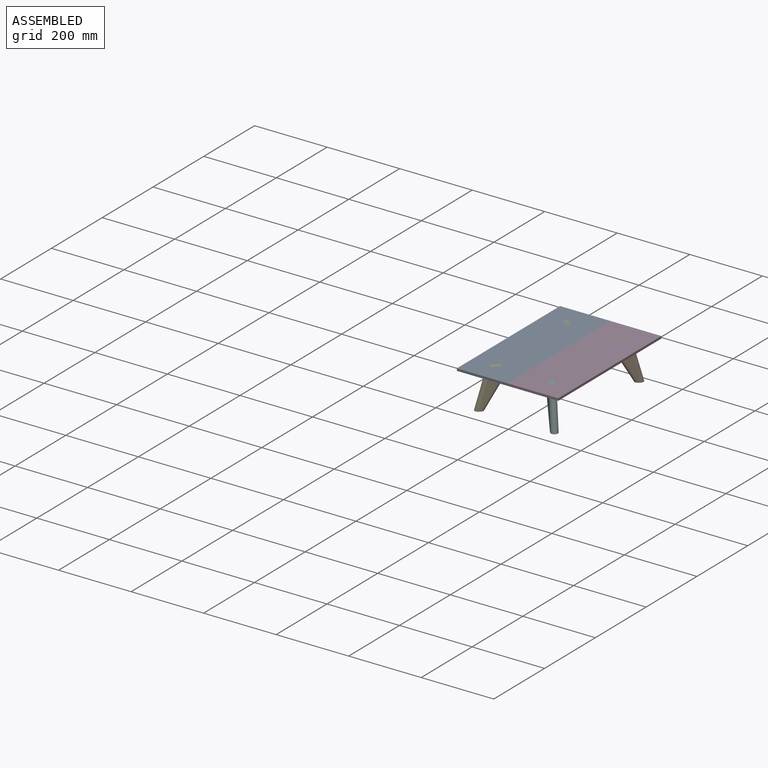
[diagram: assembled view]
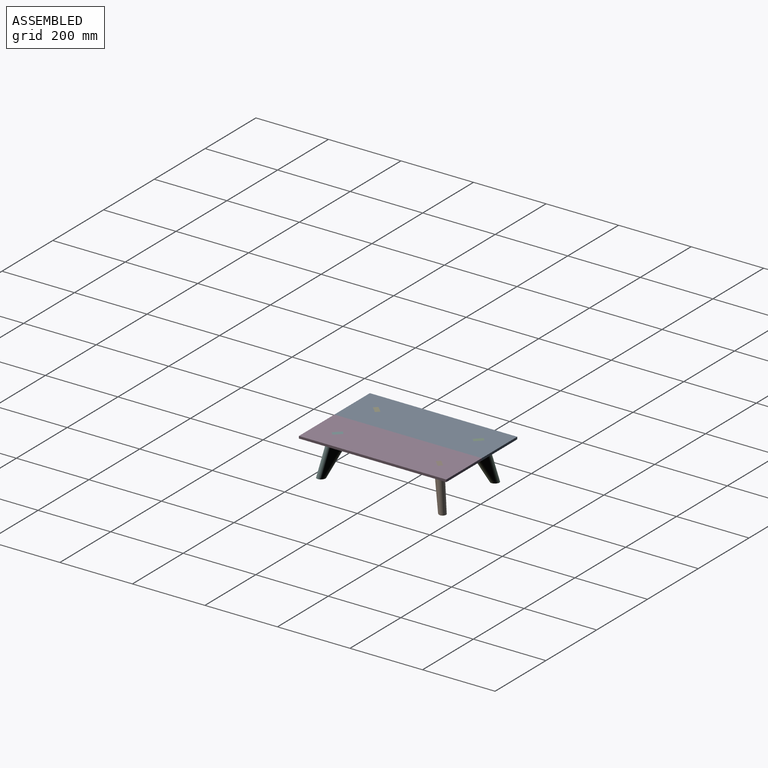
[diagram: assembled view, second angle]
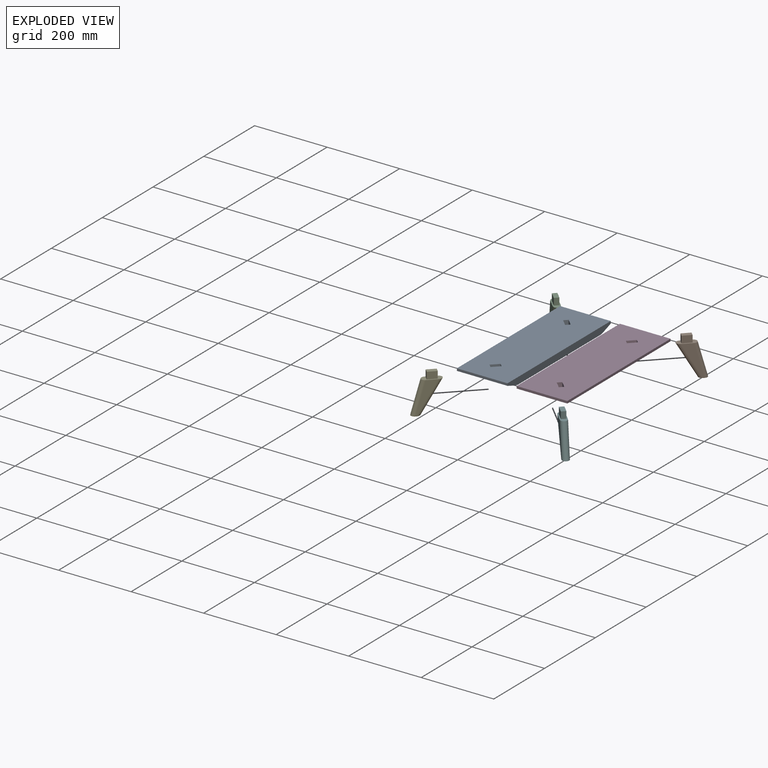
[diagram: exploded view]
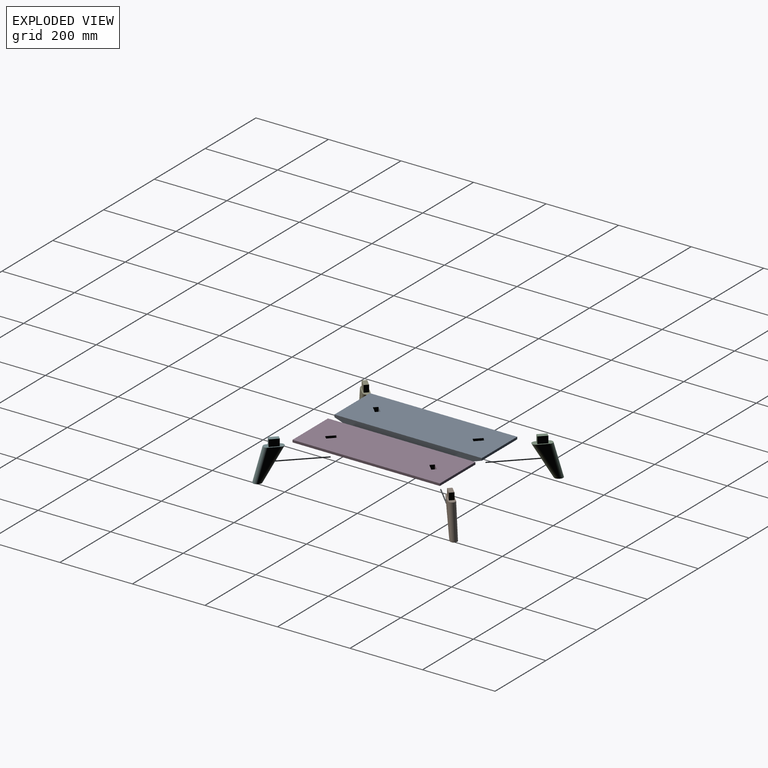
[diagram: exploded view, second angle]
ASSEMBLY  parts=6 mates=5
PART A: 20 faces, bbox 406.4x139.7x19.1 mm
  f0: plane 324.4x98.7mm, normal (0,0,-1), area 31372.6mm2, adj f4,f9,f10,f11,f12,f13,f14,f15
  f1: plane 406.4x139.7mm, normal (0,0,1), area 56128.9mm2, adj f2,f3,f4,f6,f9,f10,f11,f12
  f2: plane 139.7x6.35mm, normal (-1,0,0), area 887.1mm2, adj f1,f4,f6,f8
  f3: plane 139.7x6.35mm, normal (1,0,0), area 887.1mm2, adj f1,f4,f6,f7
  f4: plane 406.4x19.05mm, normal (0,-1,0), area 7277.1mm2, adj f0,f1,f2,f3,f7,f8,f17,f19
  f5: plane 406.4x31.13mm, normal (0,0.33,-0.94), area 12391.4mm2, adj f6,f7,f8,f18
  f6: plane 406.4x6.35mm, normal (0,1,0), area 2580.6mm2, adj f1,f2,f3,f5
  f7: plane 139.7x31.13mm, normal (0.33,0,-0.94), area 4098.9mm2, adj f3,f4,f5,f19
  f8: plane 139.7x31.13mm, normal (-0.33,0,-0.94), area 4098.9mm2, adj f2,f4,f5,f17
  f9: plane 19.05x8.98mm, normal (-0.71,-0.71,0), area 241.9mm2, adj f0,f1,f10,f12
  f10: plane 19.05x17.96mm, normal (-0.71,0.71,0), area 483.9mm2, adj f0,f1,f9,f11
  f11: plane 19.05x8.98mm, normal (0.71,0.71,0), area 241.9mm2, adj f0,f1,f10,f12
  f12: plane 19.05x17.96mm, normal (0.71,-0.71,0), area 483.9mm2, adj f0,f1,f9,f11
  f13: plane 19.05x8.98mm, normal (-0.71,0.71,0), area 241.9mm2, adj f0,f1,f14,f16
  f14: plane 19.05x17.96mm, normal (0.71,0.71,0), area 483.9mm2, adj f0,f1,f13,f15
  f15: plane 19.05x8.98mm, normal (0.71,-0.71,0), area 241.9mm2, adj f0,f1,f14,f16
  f16: plane 19.05x17.96mm, normal (-0.71,-0.71,0), area 483.9mm2, adj f0,f1,f13,f15
  f17: plane 108.57x9.87mm, normal (-0.17,0,-0.99), area 1037.8mm2, adj f0,f4,f8,f18
  f18: plane 344.14x9.87mm, normal (0,0.17,-0.99), area 3347.2mm2, adj f0,f5,f17,f19
  f19: plane 108.57x9.87mm, normal (0.17,0,-0.99), area 1037.8mm2, adj f0,f4,f7,f18
PART B: 11 faces, bbox 74.6x19.1x112.7 mm
  f0: plane 50.8x19.05mm, normal (0,0,1), area 559.9mm2, adj f2,f3,f4,f6,f7,f8,f9,f10
  f1: plane 23.29x19.05mm, normal (0,0,-1), area 358.5mm2, adj f2,f3,f9,f10
  f2: plane 88.9x53.76mm, normal (0,-1,0), area 1439.1mm2, adj f0,f1,f9,f10
  f3: plane 88.9x53.76mm, normal (0,1,0), area 1439.1mm2, adj f0,f1,f9,f10
  f4: plane 19.05x12.7mm, normal (1,0,0), area 241.9mm2, adj f0,f5,f7,f8
  f5: plane 25.4x12.7mm, normal (0,0,1), area 322.6mm2, adj f4,f6,f7,f8
  f6: plane 19.05x12.7mm, normal (-1,0,0), area 241.9mm2, adj f0,f5,f7,f8
  f7: plane 25.4x19.05mm, normal (0,-1,0), area 483.9mm2, adj f0,f4,f5,f6
  f8: plane 25.4x19.05mm, normal (0,1,0), area 483.9mm2, adj f0,f4,f5,f6
  f9: cylinder r=9.53mm len=93.84mm, axis (0.26,0,0.97), area 2754.1mm2, adj f0,f1,f2,f3
  f10: cylinder r=9.53mm len=98.44mm, axis (-0.5,0,-0.87), area 3071.8mm2, adj f0,f1,f2,f3
PART C: same geometry as B
PART D: 20 faces, bbox 406.4x139.7x19.1 mm
  f0: plane 324.4x98.7mm, normal (0,0,-1), area 31372.6mm2, adj f2,f9,f10,f11,f12,f13,f14,f15
  f1: plane 406.4x139.7mm, normal (0,0,1), area 56128.9mm2, adj f2,f3,f5,f6,f9,f10,f11,f12
  f2: plane 406.4x19.05mm, normal (0,1,0), area 7277.1mm2, adj f0,f1,f3,f5,f7,f8,f17,f19
  f3: plane 139.7x6.35mm, normal (1,0,0), area 887.1mm2, adj f1,f2,f6,f7
  f4: plane 406.4x31.13mm, normal (0,-0.33,-0.94), area 12391.4mm2, adj f6,f7,f8,f18
  f5: plane 139.7x6.35mm, normal (-1,0,0), area 887.1mm2, adj f1,f2,f6,f8
  f6: plane 406.4x6.35mm, normal (0,-1,0), area 2580.6mm2, adj f1,f3,f4,f5
  f7: plane 139.7x31.13mm, normal (0.33,0,-0.94), area 4098.9mm2, adj f2,f3,f4,f19
  f8: plane 139.7x31.13mm, normal (-0.33,0,-0.94), area 4098.9mm2, adj f2,f4,f5,f17
  f9: plane 19.05x17.96mm, normal (0.71,0.71,0), area 483.9mm2, adj f0,f1,f10,f12
  f10: plane 19.05x8.98mm, normal (0.71,-0.71,0), area 241.9mm2, adj f0,f1,f9,f11
  f11: plane 19.05x17.96mm, normal (-0.71,-0.71,0), area 483.9mm2, adj f0,f1,f10,f12
  f12: plane 19.05x8.98mm, normal (-0.71,0.71,0), area 241.9mm2, adj f0,f1,f9,f11
  f13: plane 19.05x17.96mm, normal (-0.71,0.71,0), area 483.9mm2, adj f0,f1,f14,f16
  f14: plane 19.05x8.98mm, normal (0.71,0.71,0), area 241.9mm2, adj f0,f1,f13,f15
  f15: plane 19.05x17.96mm, normal (0.71,-0.71,0), area 483.9mm2, adj f0,f1,f14,f16
  f16: plane 19.05x8.98mm, normal (-0.71,-0.71,0), area 241.9mm2, adj f0,f1,f13,f15
  f17: plane 108.57x9.87mm, normal (-0.17,0,-0.99), area 1037.8mm2, adj f0,f2,f8,f18
  f18: plane 344.14x9.87mm, normal (0,-0.17,-0.99), area 3347.2mm2, adj f0,f4,f17,f19
  f19: plane 108.57x9.87mm, normal (0.17,0,-0.99), area 1037.8mm2, adj f0,f2,f7,f18
PART E: same geometry as B
PART F: same geometry as B
PLACE A rot(axis=(0,0,1),90deg) t=(0,-203.2,0)mm
PLACE B rot(axis=(0,0,-1),135deg) t=(59.01,122.51,0)mm
PLACE C rot(axis=(0,0,-1),45deg) t=(-59.01,122.51,0)mm
PLACE D rot(axis=(0,0,1),90deg) t=(0,-203.2,0)mm
PLACE E rot(axis=(0,0,1),45deg) t=(-59.01,-122.51,0)mm
PLACE F rot(axis=(0,0,1),135deg) t=(59.01,-122.51,0)mm
MATE fastened D.f2 <-> A.f4  axis (-1,0,0) through (0,0,9.87)mm
MATE fastened D.f10 <-> B.f4  axis (0.71,0.71,0) through (67.99,131.49,9.52)mm
MATE fastened D.f16 <-> F.f4  axis (0.71,-0.71,0) through (67.99,-131.49,9.52)mm
MATE fastened A.f13 <-> E.f4  axis (-0.71,-0.71,0) through (-67.99,-131.49,9.52)mm
MATE fastened A.f11 <-> C.f4  axis (-0.71,0.71,0) through (-67.99,131.49,9.52)mm
